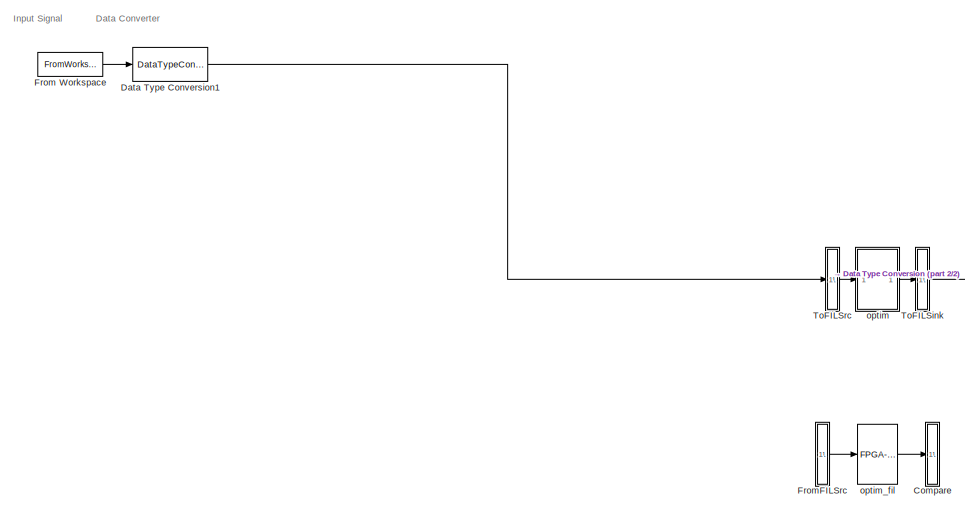
[diagram: root canvas - part 1/2, left side, full height]
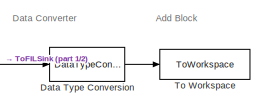
[diagram: root canvas - part 2/2, bottom right region]
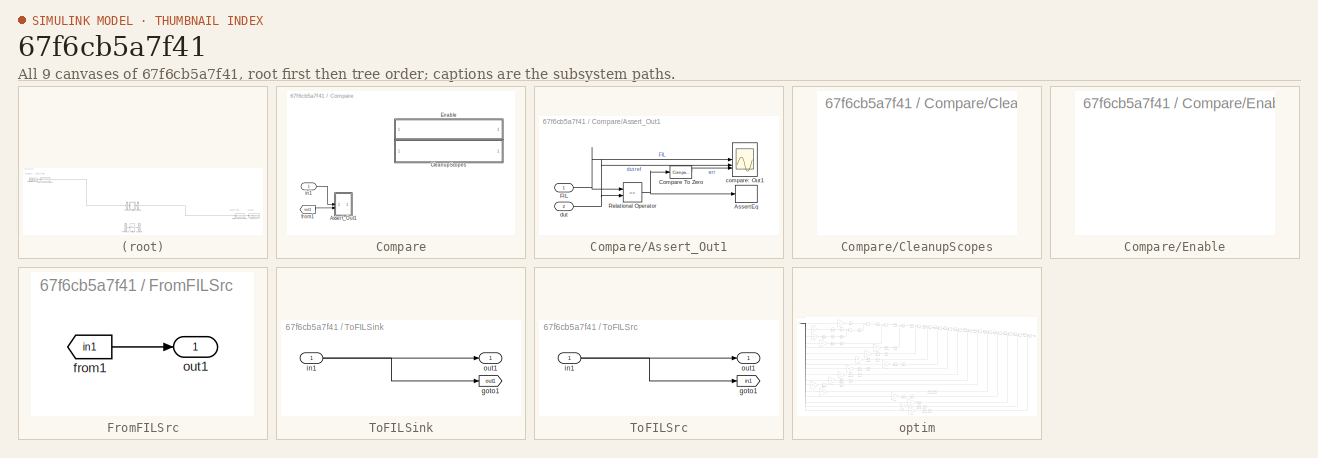
[diagram: thumbnail index - all 9 canvases of the model, root first then tree order]
MODEL slx_67f6cb5a7f41
KIND model
CONFIG AbsTol = auto
CONFIG EnableMultiTasking = off
CONFIG FixedStep = auto
CONFIG MaxStep = auto
CONFIG MinStep = auto
CONFIG RelTol = 1e-3
CONFIG SampleTimeConstraint = Unconstrained
CONFIG SolverName = VariableStepAuto
CONFIG StartTime = 0.0
CONFIG StopTime = 10.0
BLOCK [SubSystem] Compare
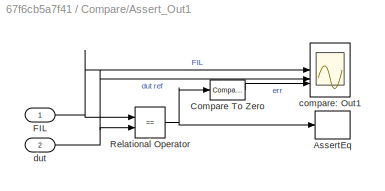
BLOCK [SubSystem] Compare/Assert_Out1
BLOCK [Assertion] Compare/Assert_Out1/AssertEq
  StopWhenAssertionFail = off
BLOCK [Reference] Compare/Assert_Out1/Compare To Zero  REF=simulink/Logic and Bit
Operations/Compare
To Zero
  SourceBlock = simulink/Logic and Bit\nOperations/Compare\nTo Zero
  SourceType = Compare To Zero
BLOCK [Inport] Compare/Assert_Out1/FIL
BLOCK [RelationalOperator] Compare/Assert_Out1/Relational Operator
  InputSameDT = off
  Operator = ==
  OutDataTypeStr = boolean
BLOCK [Scope] Compare/Assert_Out1/compare: Out1
  Floating = off
  NumInputPorts = 3
  ScopeSpecificationString = Simulink.scopes.TimeScopeBlockCfg('CurrentConfiguration', extmgr.ConfigurationSet(extmgr.Configuration('Core','General UI',true,'MessageLogAutoOpenMode','for warn/fail messages','ShowCloseAll',true,'ShowBringAllForward',true),extmgr.Configuration('Core','Source UI',true,'PlaybackToolbar',true),extmgr.Configuration('Sources','WiredSimulink',true,'PointsPerSignal',50000,'DataLoggingDecimation','1','...<+3562ch>
BLOCK [Inport] Compare/Assert_Out1/dut
  Port = 2
BLOCK [SubSystem] Compare/CleanupScopes
  OpenFcn = blkName = gcb; %self block\nidx = regexp(blkName, '/CleanupScopes$', 'once');\nblkParent = blkName(1:idx-1);\nblks=find_system(blkParent, 'LookUnderMasks', 'all','blocktype', 'Scope');\nfor itr = 1:length(blks)\n	 hScopeCfg = get_param(blks{itr},'ScopeConfiguration');\n	 hScopeCfg.Visible = ~ hScopeCfg.Visible;\nend\ndrawnow;
BLOCK [SubSystem] Compare/Enable
  OpenFcn = blkName = gcb;\nidx = regexp(blkName, '/Enable$', 'once');\nblkParent = blkName(1:idx-1);\nblks=find_system(blkParent, 'LookUnderMasks', 'all','blocktype', 'Assertion');\ne = get_param(blks{1}, 'Enabled');\nif strcmp(e, 'on'), f= 'off';, else, f = 'on';, end\nfor ii=1:length(blks), set_param(blks{ii}, 'Enabled', f);, end\nset_param(gcb, 'MaskDisplay',['fprintf(message(''hdlcoder:cosim:vnl_dblclick_assert...<+47ch>
BLOCK [From] Compare/from1
  GotoTag = out1
  TagVisibility = global
BLOCK [Inport] Compare/in1
BLOCK [DataTypeConversion] Data Type Conversion
  OutDataTypeStr = double
  RndMeth = Floor
  SaturateOnIntegerOverflow = off
BLOCK [DataTypeConversion] Data Type Conversion1
  OutDataTypeStr = fixdt(1,W,D)
  RndMeth = Floor
  SaturateOnIntegerOverflow = off
BLOCK [FromWorkspace] From Workspace
  Interpolate = off
  OutputAfterFinalValue = Setting to zero
  SampleTime = 1
  VariableName = sig_in
  ZeroCross = off
BLOCK [SubSystem] FromFILSrc
BLOCK [From] FromFILSrc/from1
  GotoTag = in1
  TagVisibility = global
BLOCK [Outport] FromFILSrc/out1
BLOCK [ToWorkspace] To Workspace
  FixptAsFi = on
  MaxDataPoints = inf
  SampleTime = -1
  VariableName = simout
BLOCK [SubSystem] ToFILSink
BLOCK [Goto] ToFILSink/goto1
  GotoTag = out1
  TagVisibility = global
BLOCK [Inport] ToFILSink/in1
BLOCK [Outport] ToFILSink/out1
BLOCK [SubSystem] ToFILSrc
BLOCK [Goto] ToFILSrc/goto1
  GotoTag = in1
  TagVisibility = global
BLOCK [Inport] ToFILSrc/in1
BLOCK [Outport] ToFILSrc/out1
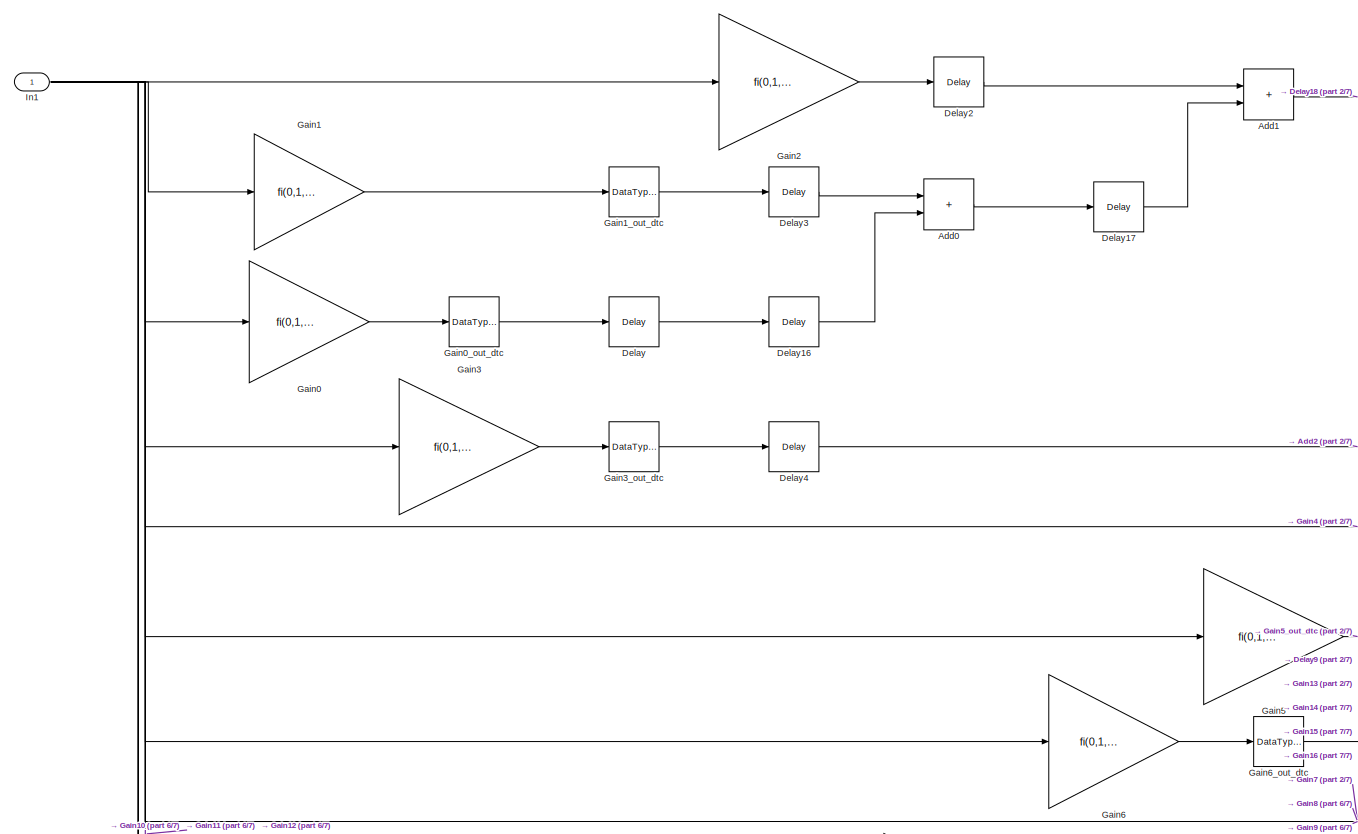
[diagram: optim - part 1/7, top left region]
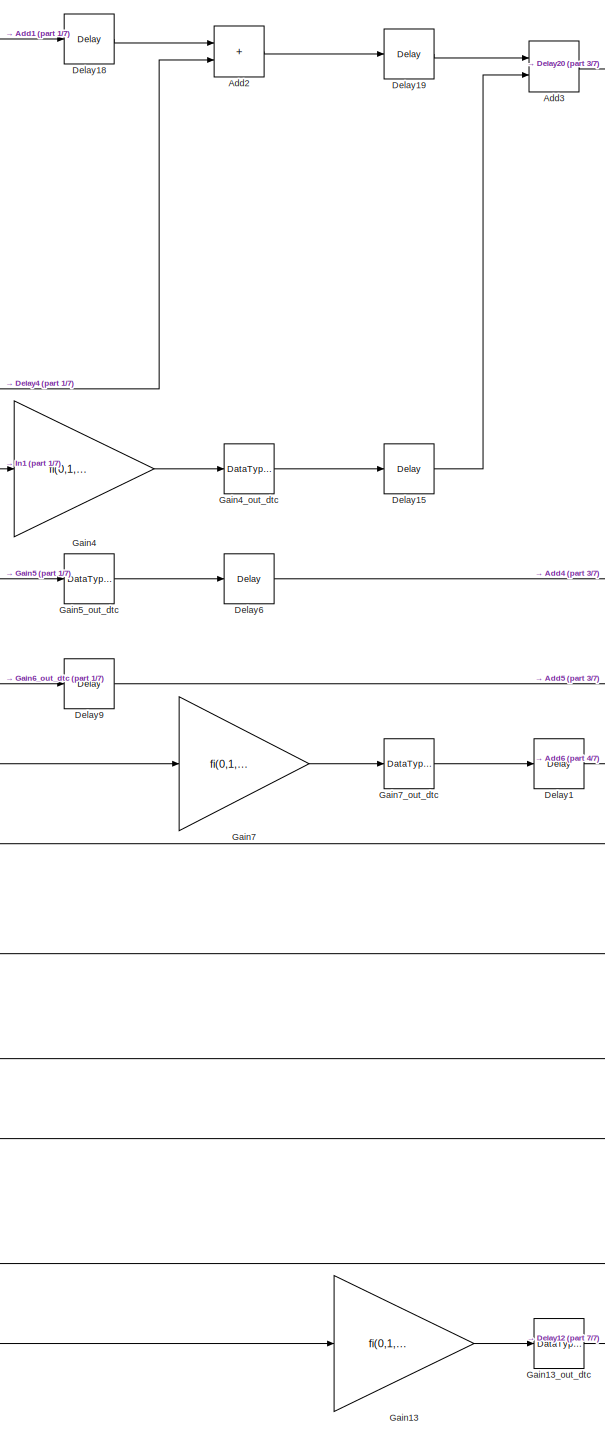
[diagram: optim - part 2/7, center side, full height]
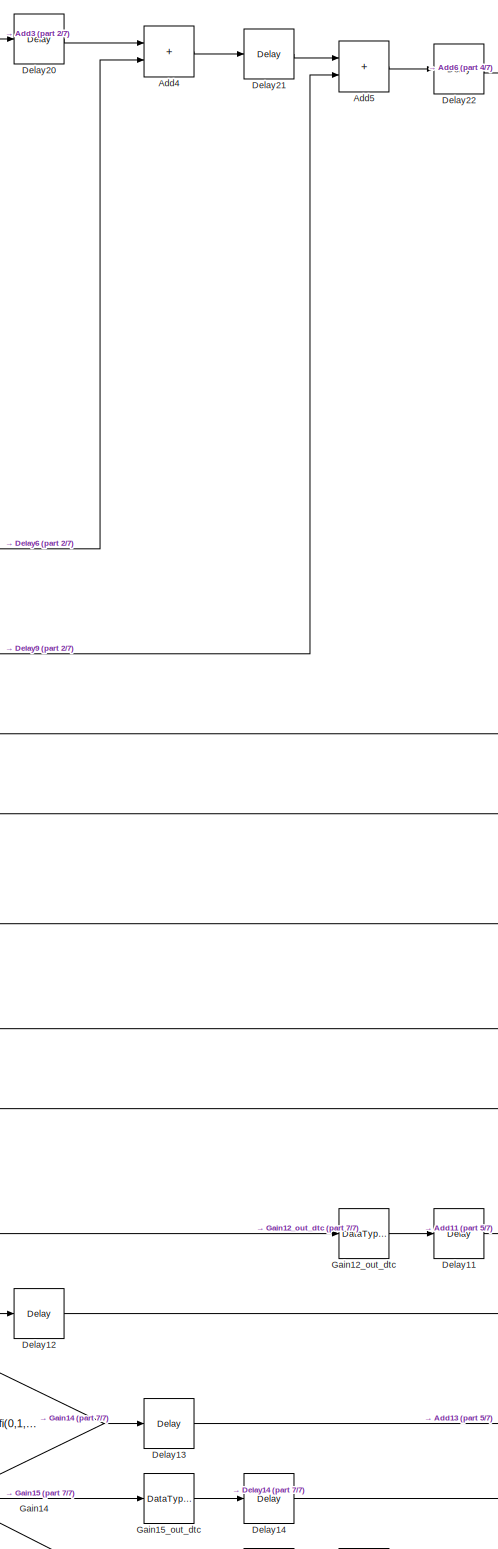
[diagram: optim - part 3/7, center side, full height]
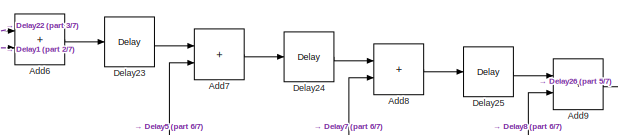
[diagram: optim - part 4/7, top center region]
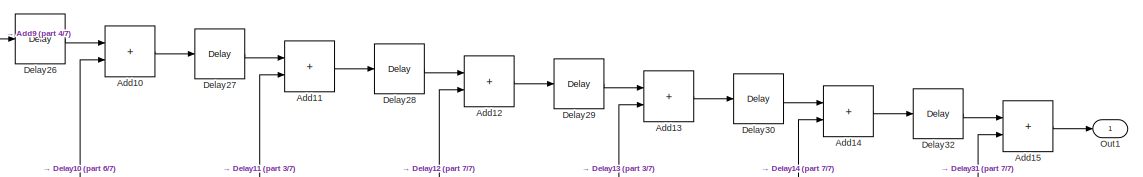
[diagram: optim - part 5/7, top right region]
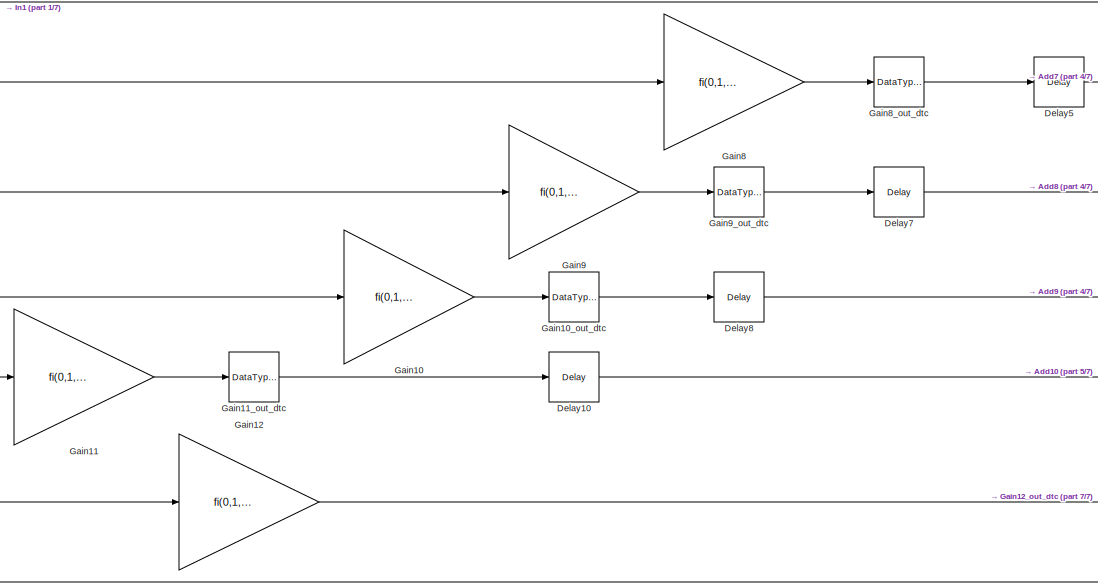
[diagram: optim - part 6/7, middle left region]
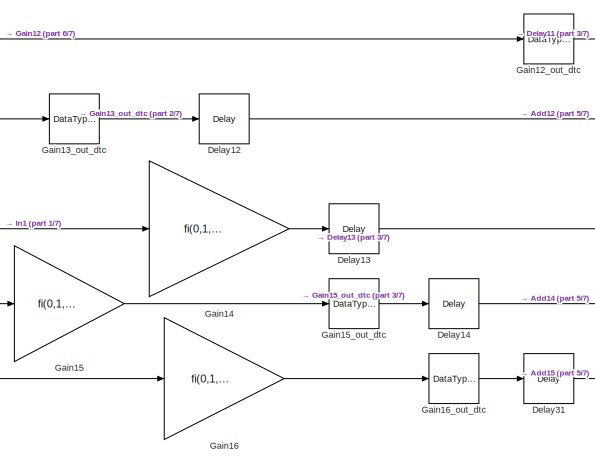
[diagram: optim - part 7/7, bottom center region]
BLOCK [SubSystem] optim
BLOCK [Sum] optim/Add0
  AccumDataTypeStr = fixdt(1, 24, 12)
  IconShape = rectangular
  OutDataTypeStr = fixdt(1, 24, 12)
  SampleTime = 1
BLOCK [Sum] optim/Add1
  AccumDataTypeStr = fixdt(1, 24, 12)
  IconShape = rectangular
  OutDataTypeStr = fixdt(1, 24, 12)
  SampleTime = 1
BLOCK [Sum] optim/Add10
  AccumDataTypeStr = fixdt(1, 24, 12)
  IconShape = rectangular
  OutDataTypeStr = fixdt(1, 24, 12)
  SampleTime = 1
BLOCK [Sum] optim/Add11
  AccumDataTypeStr = fixdt(1, 24, 12)
  IconShape = rectangular
  OutDataTypeStr = fixdt(1, 24, 12)
  SampleTime = 1
BLOCK [Sum] optim/Add12
  AccumDataTypeStr = fixdt(1, 24, 12)
  IconShape = rectangular
  OutDataTypeStr = fixdt(1, 24, 12)
  SampleTime = 1
BLOCK [Sum] optim/Add13
  AccumDataTypeStr = fixdt(1, 24, 12)
  IconShape = rectangular
  OutDataTypeStr = fixdt(1, 24, 12)
  SampleTime = 1
BLOCK [Sum] optim/Add14
  AccumDataTypeStr = fixdt(1, 24, 12)
  IconShape = rectangular
  OutDataTypeStr = fixdt(1, 24, 12)
  SampleTime = 1
BLOCK [Sum] optim/Add15
  AccumDataTypeStr = fixdt(1, 24, 12)
  IconShape = rectangular
  OutDataTypeStr = fixdt(1, 24, 12)
  SampleTime = 1
BLOCK [Sum] optim/Add2
  AccumDataTypeStr = fixdt(1, 24, 12)
  IconShape = rectangular
  OutDataTypeStr = fixdt(1, 24, 12)
  SampleTime = 1
BLOCK [Sum] optim/Add3
  AccumDataTypeStr = fixdt(1, 24, 12)
  IconShape = rectangular
  OutDataTypeStr = fixdt(1, 24, 12)
  SampleTime = 1
BLOCK [Sum] optim/Add4
  AccumDataTypeStr = fixdt(1, 24, 12)
  IconShape = rectangular
  OutDataTypeStr = fixdt(1, 24, 12)
  SampleTime = 1
BLOCK [Sum] optim/Add5
  AccumDataTypeStr = fixdt(1, 24, 12)
  IconShape = rectangular
  OutDataTypeStr = fixdt(1, 24, 12)
  SampleTime = 1
BLOCK [Sum] optim/Add6
  AccumDataTypeStr = fixdt(1, 24, 12)
  IconShape = rectangular
  OutDataTypeStr = fixdt(1, 24, 12)
  SampleTime = 1
BLOCK [Sum] optim/Add7
  AccumDataTypeStr = fixdt(1, 24, 12)
  IconShape = rectangular
  OutDataTypeStr = fixdt(1, 24, 12)
  SampleTime = 1
BLOCK [Sum] optim/Add8
  AccumDataTypeStr = fixdt(1, 24, 12)
  IconShape = rectangular
  OutDataTypeStr = fixdt(1, 24, 12)
  SampleTime = 1
BLOCK [Sum] optim/Add9
  AccumDataTypeStr = fixdt(1, 24, 12)
  IconShape = rectangular
  OutDataTypeStr = fixdt(1, 24, 12)
  SampleTime = 1
BLOCK [Delay] optim/Delay
  DelayLength = double(1)
  InitialCondition = 0
  InputPortMap = u0
  SampleTime = 1
BLOCK [Delay] optim/Delay1
  DelayLength = double(1)
  InitialCondition = 0
  InputPortMap = u0
  SampleTime = 1
BLOCK [Delay] optim/Delay10
  DelayLength = double(1)
  InitialCondition = 0
  InputPortMap = u0
  SampleTime = 1
BLOCK [Delay] optim/Delay11
  DelayLength = double(1)
  InitialCondition = 0
  InputPortMap = u0
  SampleTime = 1
BLOCK [Delay] optim/Delay12
  DelayLength = double(1)
  InitialCondition = 0
  InputPortMap = u0
  SampleTime = 1
BLOCK [Delay] optim/Delay13
  DelayLength = double(1)
  InitialCondition = 0
  InputPortMap = u0
  SampleTime = 1
BLOCK [Delay] optim/Delay14
  DelayLength = double(1)
  InitialCondition = 0
  InputPortMap = u0
  SampleTime = 1
BLOCK [Delay] optim/Delay15
  DelayLength = double(1)
  InitialCondition = 0
  InputPortMap = u0
  SampleTime = 1
BLOCK [Delay] optim/Delay16
  DelayLength = double(1)
  InitialCondition = 0
  InputPortMap = u0
  SampleTime = 1
BLOCK [Delay] optim/Delay17
  DelayLength = double(1)
  InitialCondition = 0
  InputPortMap = u0
  SampleTime = 1
BLOCK [Delay] optim/Delay18
  DelayLength = double(1)
  InitialCondition = 0
  InputPortMap = u0
  SampleTime = 1
BLOCK [Delay] optim/Delay19
  DelayLength = double(1)
  InitialCondition = 0
  InputPortMap = u0
  SampleTime = 1
BLOCK [Delay] optim/Delay2
  DelayLength = double(1)
  InitialCondition = 0
  InputPortMap = u0
  SampleTime = 1
BLOCK [Delay] optim/Delay20
  DelayLength = double(1)
  InitialCondition = 0
  InputPortMap = u0
  SampleTime = 1
BLOCK [Delay] optim/Delay21
  DelayLength = double(1)
  InitialCondition = 0
  InputPortMap = u0
  SampleTime = 1
BLOCK [Delay] optim/Delay22
  DelayLength = double(1)
  InitialCondition = 0
  InputPortMap = u0
  SampleTime = 1
BLOCK [Delay] optim/Delay23
  DelayLength = double(1)
  InitialCondition = 0
  InputPortMap = u0
  SampleTime = 1
BLOCK [Delay] optim/Delay24
  DelayLength = double(1)
  InitialCondition = 0
  InputPortMap = u0
  SampleTime = 1
BLOCK [Delay] optim/Delay25
  DelayLength = double(1)
  InitialCondition = 0
  InputPortMap = u0
  SampleTime = 1
BLOCK [Delay] optim/Delay26
  DelayLength = double(1)
  InitialCondition = 0
  InputPortMap = u0
  SampleTime = 1
BLOCK [Delay] optim/Delay27
  DelayLength = double(1)
  InitialCondition = 0
  InputPortMap = u0
  SampleTime = 1
BLOCK [Delay] optim/Delay28
  DelayLength = double(1)
  InitialCondition = 0
  InputPortMap = u0
  SampleTime = 1
BLOCK [Delay] optim/Delay29
  DelayLength = double(1)
  InitialCondition = 0
  InputPortMap = u0
  SampleTime = 1
BLOCK [Delay] optim/Delay3
  DelayLength = double(1)
  InitialCondition = 0
  InputPortMap = u0
  SampleTime = 1
BLOCK [Delay] optim/Delay30
  DelayLength = double(1)
  InitialCondition = 0
  InputPortMap = u0
  SampleTime = 1
BLOCK [Delay] optim/Delay31
  DelayLength = double(1)
  InitialCondition = 0
  InputPortMap = u0
  SampleTime = 1
BLOCK [Delay] optim/Delay32
  DelayLength = double(1)
  InitialCondition = 0
  InputPortMap = u0
  SampleTime = 1
BLOCK [Delay] optim/Delay4
  DelayLength = double(1)
  InitialCondition = 0
  InputPortMap = u0
  SampleTime = 1
BLOCK [Delay] optim/Delay5
  DelayLength = double(1)
  InitialCondition = 0
  InputPortMap = u0
  SampleTime = 1
BLOCK [Delay] optim/Delay6
  DelayLength = double(1)
  InitialCondition = 0
  InputPortMap = u0
  SampleTime = 1
BLOCK [Delay] optim/Delay7
  DelayLength = double(1)
  InitialCondition = 0
  InputPortMap = u0
  SampleTime = 1
BLOCK [Delay] optim/Delay8
  DelayLength = double(1)
  InitialCondition = 0
  InputPortMap = u0
  SampleTime = 1
BLOCK [Delay] optim/Delay9
  DelayLength = double(1)
  InitialCondition = 0
  InputPortMap = u0
  SampleTime = 1
BLOCK [Gain] optim/Gain0
  Gain = fi(0,1,24,10,"hex","fffffe")
  OutDataTypeStr = fixdt(1, 48, 22)
  ParamDataTypeStr = fixdt(1, 24, 10)
  SampleTime = 1
BLOCK [DataTypeConversion] optim/Gain0_out_dtc
  OutDataTypeStr = fixdt(1, 24, 12)
  RndMeth = Floor
  SampleTime = 1
  SaturateOnIntegerOverflow = off
BLOCK [Gain] optim/Gain1
  Gain = fi(0,1,24,10,"hex","ffffff")
  OutDataTypeStr = fixdt(1, 48, 22)
  ParamDataTypeStr = fixdt(1, 24, 10)
  SampleTime = 1
BLOCK [Gain] optim/Gain10
  Gain = fi(0,1,24,10,"hex","00007c")
  OutDataTypeStr = fixdt(1, 48, 22)
  ParamDataTypeStr = fixdt(1, 24, 10)
  SampleTime = 1
BLOCK [DataTypeConversion] optim/Gain10_out_dtc
  OutDataTypeStr = fixdt(1, 24, 12)
  RndMeth = Floor
  SampleTime = 1
  SaturateOnIntegerOverflow = off
BLOCK [Gain] optim/Gain11
  Gain = fi(0,1,24,10,"hex","000054")
  OutDataTypeStr = fixdt(1, 48, 22)
  ParamDataTypeStr = fixdt(1, 24, 10)
  SampleTime = 1
BLOCK [DataTypeConversion] optim/Gain11_out_dtc
  OutDataTypeStr = fixdt(1, 24, 12)
  RndMeth = Floor
  SampleTime = 1
  SaturateOnIntegerOverflow = off
BLOCK [Gain] optim/Gain12
  Gain = fi(0,1,24,10,"hex","00002e")
  OutDataTypeStr = fixdt(1, 48, 22)
  ParamDataTypeStr = fixdt(1, 24, 10)
  SampleTime = 1
BLOCK [DataTypeConversion] optim/Gain12_out_dtc
  OutDataTypeStr = fixdt(1, 24, 12)
  RndMeth = Floor
  SampleTime = 1
  SaturateOnIntegerOverflow = off
BLOCK [Gain] optim/Gain13
  Gain = fi(0,1,24,10,"hex","000012")
  OutDataTypeStr = fixdt(1, 48, 22)
  ParamDataTypeStr = fixdt(1, 24, 10)
  SampleTime = 1
BLOCK [DataTypeConversion] optim/Gain13_out_dtc
  OutDataTypeStr = fixdt(1, 24, 12)
  RndMeth = Floor
  SampleTime = 1
  SaturateOnIntegerOverflow = off
BLOCK [Gain] optim/Gain14
  Gain = fi(0,1,24,10,"hex","000004")
  OutDataTypeStr = fixdt(1, 24, 12)
  ParamDataTypeStr = fixdt(1, 24, 10)
  SampleTime = 1
BLOCK [Gain] optim/Gain15
  Gain = fi(0,1,24,10,"hex","ffffff")
  OutDataTypeStr = fixdt(1, 48, 22)
  ParamDataTypeStr = fixdt(1, 24, 10)
  SampleTime = 1
BLOCK [DataTypeConversion] optim/Gain15_out_dtc
  OutDataTypeStr = fixdt(1, 24, 12)
  RndMeth = Floor
  SampleTime = 1
  SaturateOnIntegerOverflow = off
BLOCK [Gain] optim/Gain16
  Gain = fi(0,1,24,10,"hex","fffffe")
  OutDataTypeStr = fixdt(1, 48, 22)
  ParamDataTypeStr = fixdt(1, 24, 10)
  SampleTime = 1
BLOCK [DataTypeConversion] optim/Gain16_out_dtc
  OutDataTypeStr = fixdt(1, 24, 12)
  RndMeth = Floor
  SampleTime = 1
  SaturateOnIntegerOverflow = off
BLOCK [DataTypeConversion] optim/Gain1_out_dtc
  OutDataTypeStr = fixdt(1, 24, 12)
  RndMeth = Floor
  SampleTime = 1
  SaturateOnIntegerOverflow = off
BLOCK [Gain] optim/Gain2
  Gain = fi(0,1,24,10,"hex","000004")
  OutDataTypeStr = fixdt(1, 24, 12)
  ParamDataTypeStr = fixdt(1, 24, 10)
  SampleTime = 1
BLOCK [Gain] optim/Gain3
  Gain = fi(0,1,24,10,"hex","000012")
  OutDataTypeStr = fixdt(1, 48, 22)
  ParamDataTypeStr = fixdt(1, 24, 10)
  SampleTime = 1
BLOCK [DataTypeConversion] optim/Gain3_out_dtc
  OutDataTypeStr = fixdt(1, 24, 12)
  RndMeth = Floor
  SampleTime = 1
  SaturateOnIntegerOverflow = off
BLOCK [Gain] optim/Gain4
  Gain = fi(0,1,24,10,"hex","00002e")
  OutDataTypeStr = fixdt(1, 48, 22)
  ParamDataTypeStr = fixdt(1, 24, 10)
  SampleTime = 1
BLOCK [DataTypeConversion] optim/Gain4_out_dtc
  OutDataTypeStr = fixdt(1, 24, 12)
  RndMeth = Floor
  SampleTime = 1
  SaturateOnIntegerOverflow = off
BLOCK [Gain] optim/Gain5
  Gain = fi(0,1,24,10,"hex","000054")
  OutDataTypeStr = fixdt(1, 48, 22)
  ParamDataTypeStr = fixdt(1, 24, 10)
  SampleTime = 1
BLOCK [DataTypeConversion] optim/Gain5_out_dtc
  OutDataTypeStr = fixdt(1, 24, 12)
  RndMeth = Floor
  SampleTime = 1
  SaturateOnIntegerOverflow = off
BLOCK [Gain] optim/Gain6
  Gain = fi(0,1,24,10,"hex","00007c")
  OutDataTypeStr = fixdt(1, 48, 22)
  ParamDataTypeStr = fixdt(1, 24, 10)
  SampleTime = 1
BLOCK [DataTypeConversion] optim/Gain6_out_dtc
  OutDataTypeStr = fixdt(1, 24, 12)
  RndMeth = Floor
  SampleTime = 1
  SaturateOnIntegerOverflow = off
BLOCK [Gain] optim/Gain7
  Gain = fi(0,1,24,10,"hex","00009c")
  OutDataTypeStr = fixdt(1, 48, 22)
  ParamDataTypeStr = fixdt(1, 24, 10)
  SampleTime = 1
BLOCK [DataTypeConversion] optim/Gain7_out_dtc
  OutDataTypeStr = fixdt(1, 24, 12)
  RndMeth = Floor
  SampleTime = 1
  SaturateOnIntegerOverflow = off
BLOCK [Gain] optim/Gain8
  Gain = fi(0,1,24,10,"hex","0000a7")
  OutDataTypeStr = fixdt(1, 48, 22)
  ParamDataTypeStr = fixdt(1, 24, 10)
  SampleTime = 1
BLOCK [DataTypeConversion] optim/Gain8_out_dtc
  OutDataTypeStr = fixdt(1, 24, 12)
  RndMeth = Floor
  SampleTime = 1
  SaturateOnIntegerOverflow = off
BLOCK [Gain] optim/Gain9
  Gain = fi(0,1,24,10,"hex","00009c")
  OutDataTypeStr = fixdt(1, 48, 22)
  ParamDataTypeStr = fixdt(1, 24, 10)
  SampleTime = 1
BLOCK [DataTypeConversion] optim/Gain9_out_dtc
  OutDataTypeStr = fixdt(1, 24, 12)
  RndMeth = Floor
  SampleTime = 1
  SaturateOnIntegerOverflow = off
BLOCK [Inport] optim/In1
  OutDataTypeStr = fixdt(1, 24, 12)
  PortDimensions = 1
  SampleTime = 1
BLOCK [Outport] optim/Out1
  SampleTime = 1
BLOCK [Reference] optim_fil  REF=fillib/FPGA-in-the-Loop (FIL)
  SourceBlock = fillib/FPGA-in-the-Loop (FIL)
  SourceType = FPGA-in-the-Loop (FIL)
  UserDataPersistent = on
ANNOTATION (root): Add Block
ANNOTATION (root): Data Converter
ANNOTATION (root): Input Signal
LINE Compare/Assert_Out1/Compare To Zero:1 -> Compare/Assert_Out1/compare: Out1:3
NET Compare/Assert_Out1/FIL:1 -> Compare/Assert_Out1/Relational Operator:1, Compare/Assert_Out1/compare: Out1:1
NET Compare/Assert_Out1/Relational Operator:1 -> Compare/Assert_Out1/AssertEq:1, Compare/Assert_Out1/Compare To Zero:1
NET Compare/Assert_Out1/dut:1 -> Compare/Assert_Out1/Relational Operator:2, Compare/Assert_Out1/compare: Out1:2
LINE Compare/from1:1 -> Compare/Assert_Out1:2
LINE Compare/in1:1 -> Compare/Assert_Out1:1
LINE Data Type Conversion1:1 -> ToFILSrc:1
LINE Data Type Conversion:1 -> To Workspace:1
LINE From Workspace:1 -> Data Type Conversion1:1
LINE FromFILSrc/from1:1 -> FromFILSrc/out1:1
LINE FromFILSrc:1 -> optim_fil:1
NET ToFILSink/in1:1 -> ToFILSink/goto1:1, ToFILSink/out1:1
LINE ToFILSink:1 -> Data Type Conversion:1
NET ToFILSrc/in1:1 -> ToFILSrc/goto1:1, ToFILSrc/out1:1
LINE ToFILSrc:1 -> optim:1
LINE optim/Add0:1 -> optim/Delay17:1
LINE optim/Add10:1 -> optim/Delay27:1
LINE optim/Add11:1 -> optim/Delay28:1
LINE optim/Add12:1 -> optim/Delay29:1
LINE optim/Add13:1 -> optim/Delay30:1
LINE optim/Add14:1 -> optim/Delay32:1
LINE optim/Add15:1 -> optim/Out1:1
LINE optim/Add1:1 -> optim/Delay18:1
LINE optim/Add2:1 -> optim/Delay19:1
LINE optim/Add3:1 -> optim/Delay20:1
LINE optim/Add4:1 -> optim/Delay21:1
LINE optim/Add5:1 -> optim/Delay22:1
LINE optim/Add6:1 -> optim/Delay23:1
LINE optim/Add7:1 -> optim/Delay24:1
LINE optim/Add8:1 -> optim/Delay25:1
LINE optim/Add9:1 -> optim/Delay26:1
LINE optim/Delay10:1 -> optim/Add10:2
LINE optim/Delay11:1 -> optim/Add11:2
LINE optim/Delay12:1 -> optim/Add12:2
LINE optim/Delay13:1 -> optim/Add13:2
LINE optim/Delay14:1 -> optim/Add14:2
LINE optim/Delay15:1 -> optim/Add3:2
LINE optim/Delay16:1 -> optim/Add0:2
LINE optim/Delay17:1 -> optim/Add1:2
LINE optim/Delay18:1 -> optim/Add2:1
LINE optim/Delay19:1 -> optim/Add3:1
LINE optim/Delay1:1 -> optim/Add6:2
LINE optim/Delay20:1 -> optim/Add4:1
LINE optim/Delay21:1 -> optim/Add5:1
LINE optim/Delay22:1 -> optim/Add6:1
LINE optim/Delay23:1 -> optim/Add7:1
LINE optim/Delay24:1 -> optim/Add8:1
LINE optim/Delay25:1 -> optim/Add9:1
LINE optim/Delay26:1 -> optim/Add10:1
LINE optim/Delay27:1 -> optim/Add11:1
LINE optim/Delay28:1 -> optim/Add12:1
LINE optim/Delay29:1 -> optim/Add13:1
LINE optim/Delay2:1 -> optim/Add1:1
LINE optim/Delay30:1 -> optim/Add14:1
LINE optim/Delay31:1 -> optim/Add15:2
LINE optim/Delay32:1 -> optim/Add15:1
LINE optim/Delay3:1 -> optim/Add0:1
LINE optim/Delay4:1 -> optim/Add2:2
LINE optim/Delay5:1 -> optim/Add7:2
LINE optim/Delay6:1 -> optim/Add4:2
LINE optim/Delay7:1 -> optim/Add8:2
LINE optim/Delay8:1 -> optim/Add9:2
LINE optim/Delay9:1 -> optim/Add5:2
LINE optim/Delay:1 -> optim/Delay16:1
LINE optim/Gain0:1 -> optim/Gain0_out_dtc:1
LINE optim/Gain0_out_dtc:1 -> optim/Delay:1
LINE optim/Gain10:1 -> optim/Gain10_out_dtc:1
LINE optim/Gain10_out_dtc:1 -> optim/Delay8:1
LINE optim/Gain11:1 -> optim/Gain11_out_dtc:1
LINE optim/Gain11_out_dtc:1 -> optim/Delay10:1
LINE optim/Gain12:1 -> optim/Gain12_out_dtc:1
LINE optim/Gain12_out_dtc:1 -> optim/Delay11:1
LINE optim/Gain13:1 -> optim/Gain13_out_dtc:1
LINE optim/Gain13_out_dtc:1 -> optim/Delay12:1
LINE optim/Gain14:1 -> optim/Delay13:1
LINE optim/Gain15:1 -> optim/Gain15_out_dtc:1
LINE optim/Gain15_out_dtc:1 -> optim/Delay14:1
LINE optim/Gain16:1 -> optim/Gain16_out_dtc:1
LINE optim/Gain16_out_dtc:1 -> optim/Delay31:1
LINE optim/Gain1:1 -> optim/Gain1_out_dtc:1
LINE optim/Gain1_out_dtc:1 -> optim/Delay3:1
LINE optim/Gain2:1 -> optim/Delay2:1
LINE optim/Gain3:1 -> optim/Gain3_out_dtc:1
LINE optim/Gain3_out_dtc:1 -> optim/Delay4:1
LINE optim/Gain4:1 -> optim/Gain4_out_dtc:1
LINE optim/Gain4_out_dtc:1 -> optim/Delay15:1
LINE optim/Gain5:1 -> optim/Gain5_out_dtc:1
LINE optim/Gain5_out_dtc:1 -> optim/Delay6:1
LINE optim/Gain6:1 -> optim/Gain6_out_dtc:1
LINE optim/Gain6_out_dtc:1 -> optim/Delay9:1
LINE optim/Gain7:1 -> optim/Gain7_out_dtc:1
LINE optim/Gain7_out_dtc:1 -> optim/Delay1:1
LINE optim/Gain8:1 -> optim/Gain8_out_dtc:1
LINE optim/Gain8_out_dtc:1 -> optim/Delay5:1
LINE optim/Gain9:1 -> optim/Gain9_out_dtc:1
LINE optim/Gain9_out_dtc:1 -> optim/Delay7:1
NET optim/In1:1 -> optim/Gain0:1, optim/Gain10:1, optim/Gain11:1, optim/Gain12:1, optim/Gain13:1, optim/Gain14:1, optim/Gain15:1, optim/Gain16:1, optim/Gain1:1, optim/Gain2:1, optim/Gain3:1, optim/Gain4:1, optim/Gain5:1, optim/Gain6:1, optim/Gain7:1, optim/Gain8:1, optim/Gain9:1
LINE optim:1 -> ToFILSink:1
LINE optim_fil:1 -> Compare:1
note: NET lines group one-source signal fan-out (src -> all destinations, sorted); 1:1 wires keep LINE
